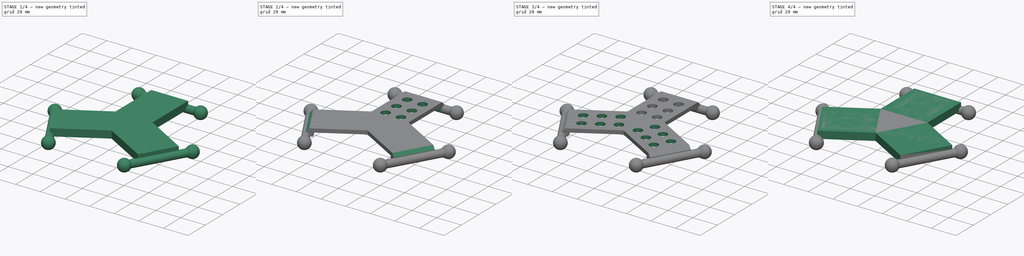
[diagram: build sequence overview — one tinted view per stage of 4, left to right]
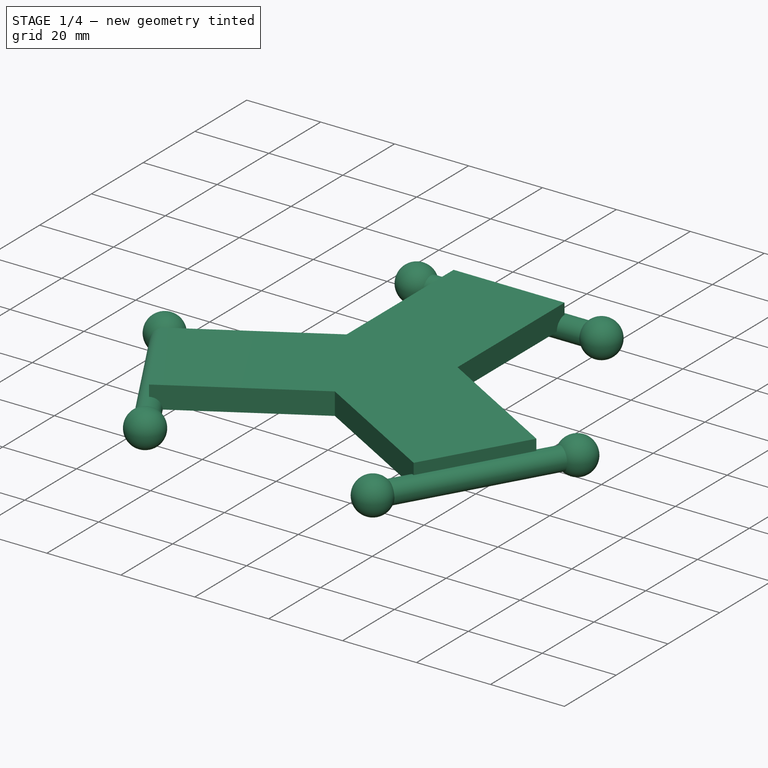
[diagram: stage 1 of 4 — iso view after this stage's code; geometry added in this stage tinted green]
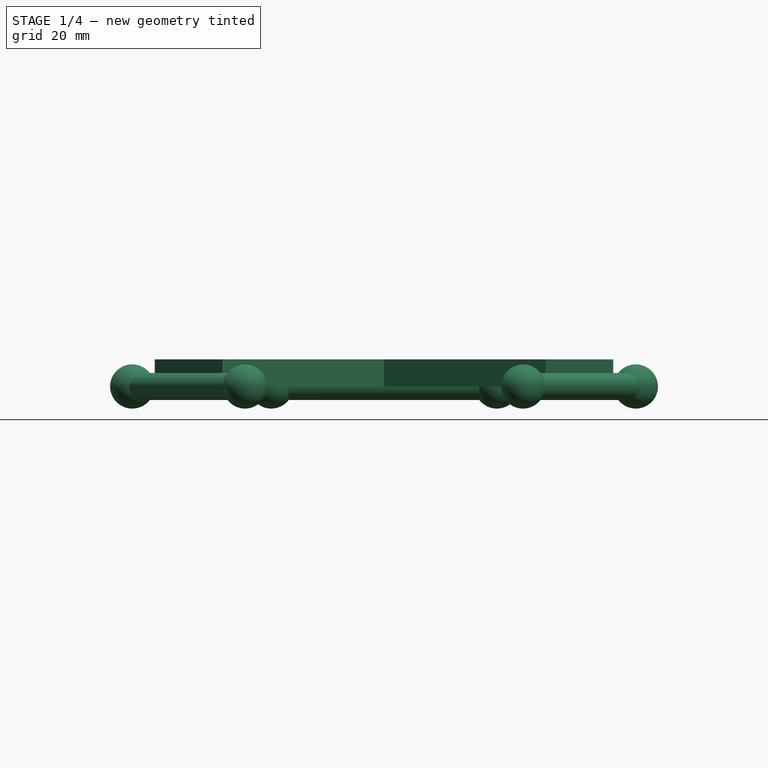
[diagram: stage 1 of 4 — front view after this stage's code; geometry added in this stage tinted green]
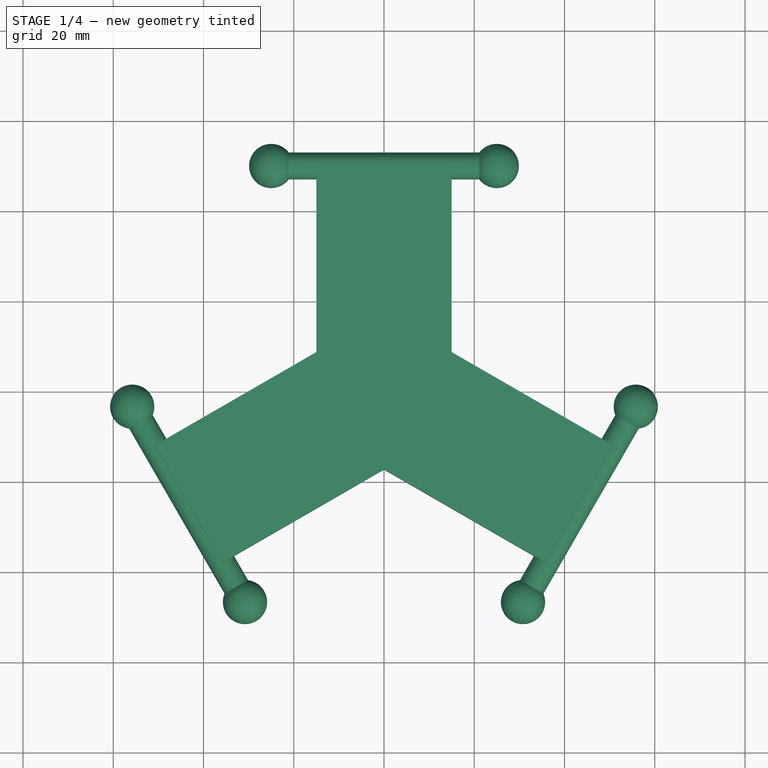
[diagram: stage 1 of 4 — top view after this stage's code; geometry added in this stage tinted green]
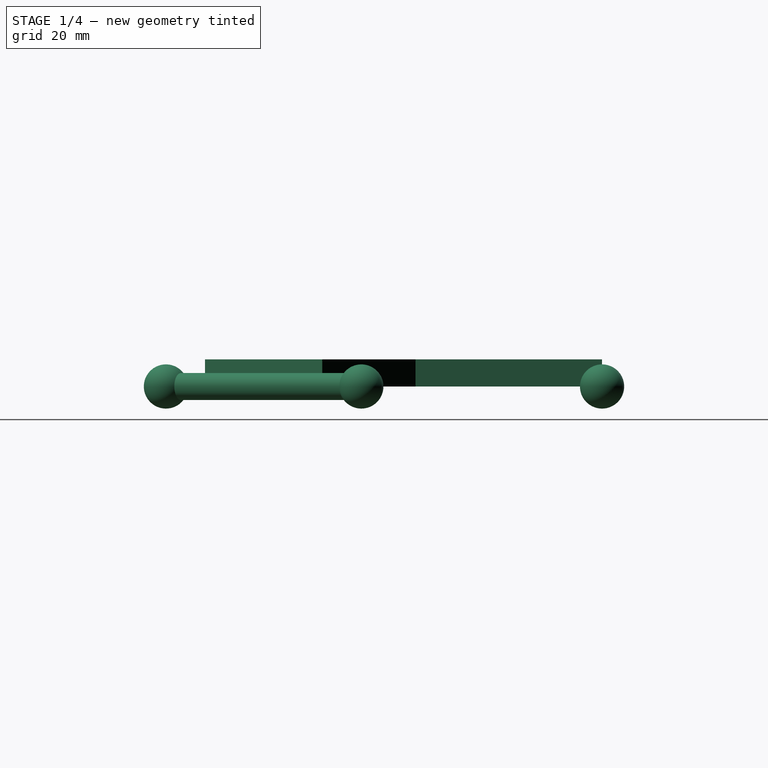
[diagram: stage 1 of 4 — right view after this stage's code; geometry added in this stage tinted green]
FCSTD DOCUMENT  (FreeCAD 2024.1R35694 (Git))
Label: plate
License: All rights reserved
LicenseURL: http://en.wikipedia.org/wiki/All_rights_reserved
objects: Sketcher::SketchObject×6, PartDesign::PolarPattern×3, PartDesign::Pad×2, PartDesign::Revolution×2, PartDesign::Body×2, PartDesign::Chamfer×2, PartDesign::Pocket×2, App::Part×1
note: 27 computed .brp shape members not serialized (recipe doc carries the construction recipe); baked Part::Feature solids carry a one-line shape summary decoded from their .brp

FEATURE [PartDesign::Body] Body001  label="plate-skel"
  Group = -> [Sketch003,Pad001,Sketch,Revolution,PolarPattern]
  Origin = -> Origin002
  Tip = -> PolarPattern
FEATURE [Sketcher::SketchObject] Sketch005
  FullyConstrained = true
  MapMode = 5
  Support = -> [XY_Plane003]
  sketch-geometry (4):
    g0: LineSegment StartX=15 StartY=0 StartZ=0 EndX=15 EndY=50 EndZ=0
    g1: LineSegment StartX=15 StartY=50 StartZ=0 EndX=-15 EndY=50 EndZ=0
    g2: LineSegment StartX=-15 StartY=50 StartZ=0 EndX=-15 EndY=0 EndZ=0
    g3: LineSegment StartX=-15 StartY=0 StartZ=0 EndX=15 EndY=0 EndZ=0
  constraints (11):
    c: Coincident(g0,g1)
    c: Coincident(g1,g2)
    c: Coincident(g2,g3)
    c: Coincident(g3,g0)
    c: Vertical(g0)
    c: Vertical(g2)
    c: Horizontal(g1)
    c: PointOnObject(g0,g-1)
    c: Symmetric(g2,g0,g-2)
    c: DistanceX(g3,g3) = 30
    c: DistanceY(g0,g0) = 50
FEATURE [PartDesign::Pad] Pad002
  Direction = (0,0,1)
  Length = 6
  Length2 = 10
  Profile = -> Sketch005
  ReferenceAxis = -> Sketch005 [N_Axis]
  Type = 0
FEATURE [Sketcher::SketchObject] Sketch004
  ExternalGeometry = -> [Pad002]
  FullyConstrained = true
  MapMode = 5
  Support = -> [XY_Plane003]
  sketch-geometry (4):
    g0: LineSegment StartX=-29.9 StartY=50 StartZ=0 EndX=29.9 EndY=50 EndZ=0
    g1: ArcOfCircle CenterX=-25 CenterY=50 CenterZ=0 NormalX=0 NormalY=0 NormalZ=1 AngleXU=0 Radius=4.9 StartAngle=0.658897 EndAngle=3.14159
    g2: ArcOfCircle CenterX=25 CenterY=50 CenterZ=0 NormalX=0 NormalY=0 NormalZ=1 AngleXU=0 Radius=4.9 StartAngle=4e-16 EndAngle=2.4827
    g3: LineSegment StartX=-21.1257 StartY=53 StartZ=0 EndX=21.1257 EndY=53 EndZ=0
  constraints (12):
    c: Symmetric(g0,g0,g-2)
    c: PointOnObject(g-3,g0)
    c: PointOnObject(g1,g0)
    c: Coincident(g1,g0)
    c: Coincident(g2,g0)
    c: Symmetric(g1,g2,g-2)
    c: DistanceX(g1,g2) = 50
    c: Radius(g1) = 4.9
    c: Coincident(g3,g1)
    c: Coincident(g3,g2)
    c: Horizontal(g3)
    c: DistanceY(g-3,g1) = 3
FEATURE [PartDesign::Revolution] Revolution001
  Angle = 360
  Angle2 = 60
  Axis = (1,0,0)
  Base = (-29.9,50,0)
  BaseFeature = -> Pad002
  Profile = -> Sketch004
  ReferenceAxis = -> Sketch004 [Edge1]
  Refine = true
  Type = 0
FEATURE [PartDesign::PolarPattern] PolarPattern001
  Angle = 360
  Axis = -> Sketch005 [N_Axis]
  BaseFeature = -> Revolution001
  Mode = 0
  Occurrences = 3
  Offset = 120
  Originals = -> [Pad002,Revolution001]
  Refine = true
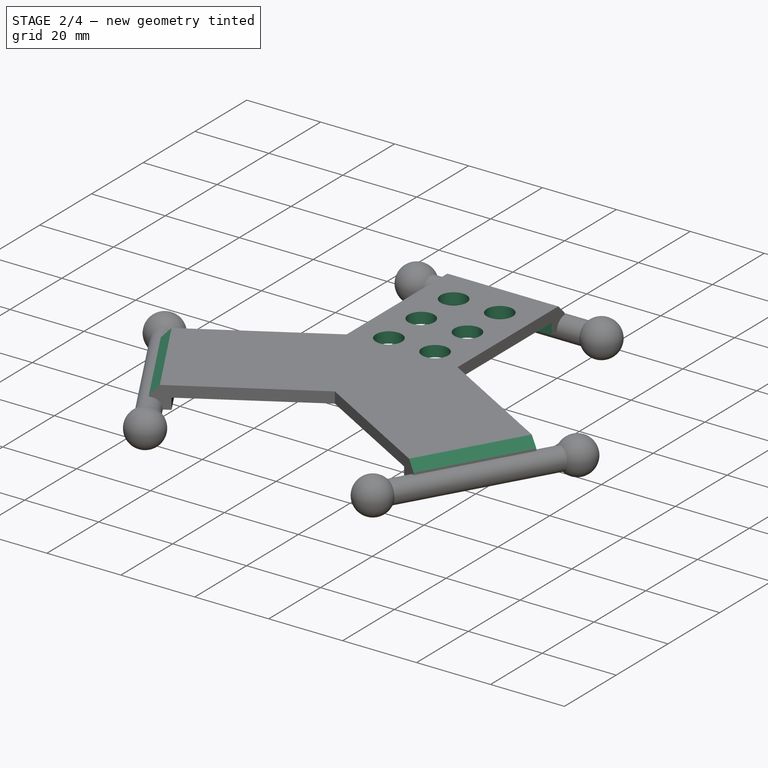
[diagram: stage 2 of 4 — iso view after this stage's code; geometry added in this stage tinted green]
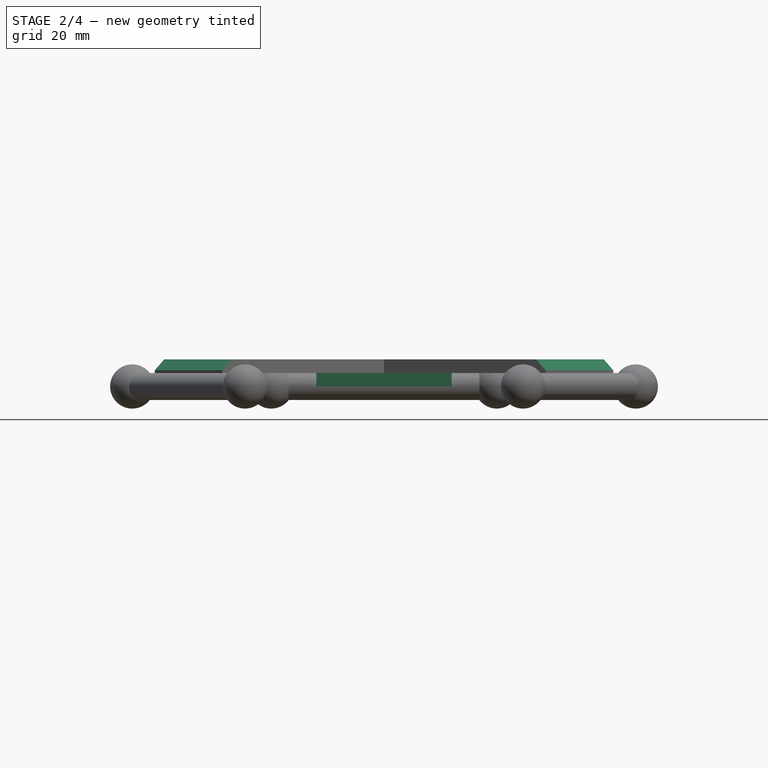
[diagram: stage 2 of 4 — front view after this stage's code; geometry added in this stage tinted green]
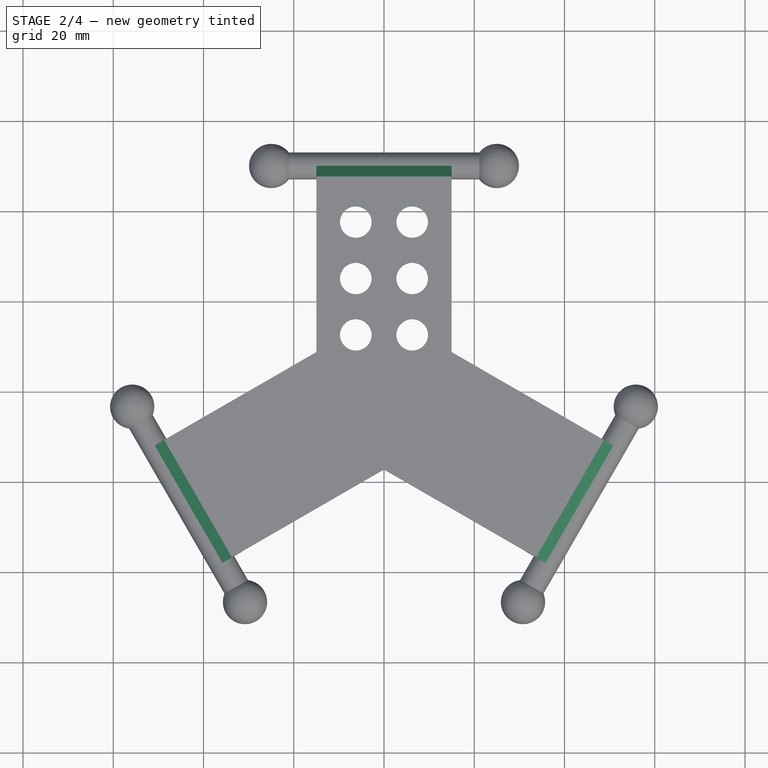
[diagram: stage 2 of 4 — top view after this stage's code; geometry added in this stage tinted green]
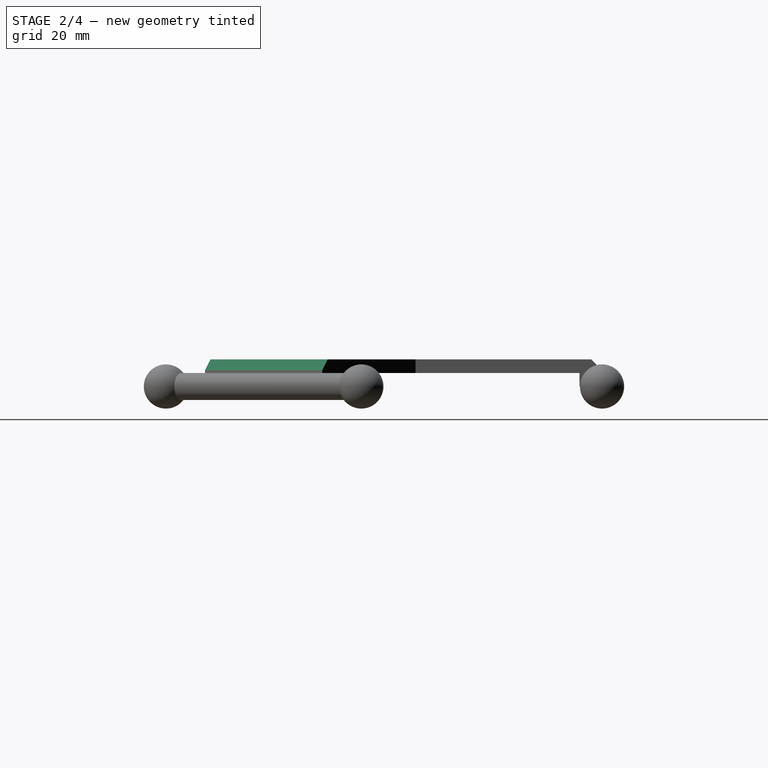
[diagram: stage 2 of 4 — right view after this stage's code; geometry added in this stage tinted green]
FEATURE [PartDesign::Chamfer] Chamfer
  Angle = 45
  Base = -> PolarPattern001 [Edge17,Edge44,Edge35]
  BaseFeature = -> PolarPattern001
  ChamferType = 0
  FlipDirection = false
  Refine = true
  Size = 2.4
  Size2 = 1
  SupportTransform = false
  UseAllEdges = false
FEATURE [Sketcher::SketchObject] Sketch006
  FullyConstrained = true
  MapMode = 5
  Placement = pos=(0,0,0) rot=(1,0,0;3.14159rad)
  Support = -> [Chamfer]
  sketch-geometry (7):
    g0: LineSegment StartX=25.9808 StartY=45 StartZ=0 EndX=-25.9808 EndY=45 EndZ=0
    g1: LineSegment StartX=-25.9808 StartY=45 StartZ=0 EndX=-51.9615 EndY=0 EndZ=0
    g2: LineSegment StartX=-51.9615 StartY=0 StartZ=0 EndX=-25.9808 EndY=-45 EndZ=0
    g3: LineSegment StartX=-25.9808 StartY=-45 StartZ=0 EndX=25.9808 EndY=-45 EndZ=0
    g4: LineSegment StartX=25.9808 StartY=-45 StartZ=0 EndX=51.9615 EndY=0 EndZ=0
    g5: LineSegment StartX=51.9615 StartY=0 StartZ=0 EndX=25.9808 EndY=45 EndZ=0
    g6: Circle CenterX=0 CenterY=0 CenterZ=0 NormalX=0 NormalY=0 NormalZ=1 AngleXU=0 Radius=51.9615
  constraints (16):
    c: Coincident(g0,g1)
    c: Coincident(g1,g2)
    c: Coincident(g2,g3)
    c: Coincident(g3,g4)
    c: Coincident(g4,g5)
    c: Coincident(g5,g0)
    c: Equal(g0, g1-g5) x5
    c: PointOnObject(g0,g6)
    c: PointOnObject(g1,g6)
    c: PointOnObject(g2,g6)
    c: PointOnObject(g3,g6)
    c: PointOnObject(g4,g6)
    c: PointOnObject(g5,g6)
    c: Coincident(g6,g-1)
    c: Horizontal(g0)
    c: DistanceY(g3,g0) = 90
FEATURE [PartDesign::Pocket] Pocket
  BaseFeature = -> Chamfer
  Direction = (0,0,1)
  Length = 3
  Length2 = 5
  Profile = -> Sketch006
  ReferenceAxis = -> Sketch006 [N_Axis]
  Refine = true
  Type = 0
FEATURE [Sketcher::SketchObject] Sketch007
  FullyConstrained = true
  MapMode = 5
  Placement = pos=(0,0,3) rot=(1,0,0;3.14159rad)
  Support = -> [Pocket]
  sketch-geometry (6):
    g0: Circle CenterX=-6.25 CenterY=-37.5 CenterZ=0 NormalX=0 NormalY=0 NormalZ=1 AngleXU=0 Radius=3.5
    g1: Circle CenterX=6.25 CenterY=-37.5 CenterZ=0 NormalX=0 NormalY=0 NormalZ=1 AngleXU=0 Radius=3.5
    g2: Circle CenterX=-6.25 CenterY=-25 CenterZ=0 NormalX=0 NormalY=0 NormalZ=1 AngleXU=0 Radius=3.5
    g3: Circle CenterX=6.25 CenterY=-25 CenterZ=0 NormalX=0 NormalY=0 NormalZ=1 AngleXU=0 Radius=3.5
    g4: Circle CenterX=6.25 CenterY=-12.5 CenterZ=0 NormalX=0 NormalY=0 NormalZ=1 AngleXU=0 Radius=3.5
    g5: Circle CenterX=-6.25 CenterY=-12.5 CenterZ=0 NormalX=0 NormalY=0 NormalZ=1 AngleXU=0 Radius=3.5
  constraints (15):
    c: Symmetric(g0,g1,g-2)
    c: Symmetric(g2,g3,g-2)
    c: DistanceX(g2,g3) = 12.5
    c: DistanceY(g1,g3) = 12.5
    c: Diameter(g3) = 7
    c: Equal(g2,g3)
    c: Equal(g0,g1)
    c: DistanceY(g3,g-1) = 25
    c: Vertical(g3,g1)
    c: Equal(g0,g2)
    c: Symmetric(g5,g4,g-2)
    c: Vertical(g2,g5)
    c: DistanceY(g3,g4) = 12.5
    c: Equal(g5,g2)
    c: Equal(g4,g5)
FEATURE [PartDesign::Pocket] Pocket001
  BaseFeature = -> Pocket
  Direction = (0,0,1)
  Length = 5
  Length2 = 5
  Profile = -> Sketch007
  ReferenceAxis = -> Sketch007 [N_Axis]
  Refine = true
  Type = 1
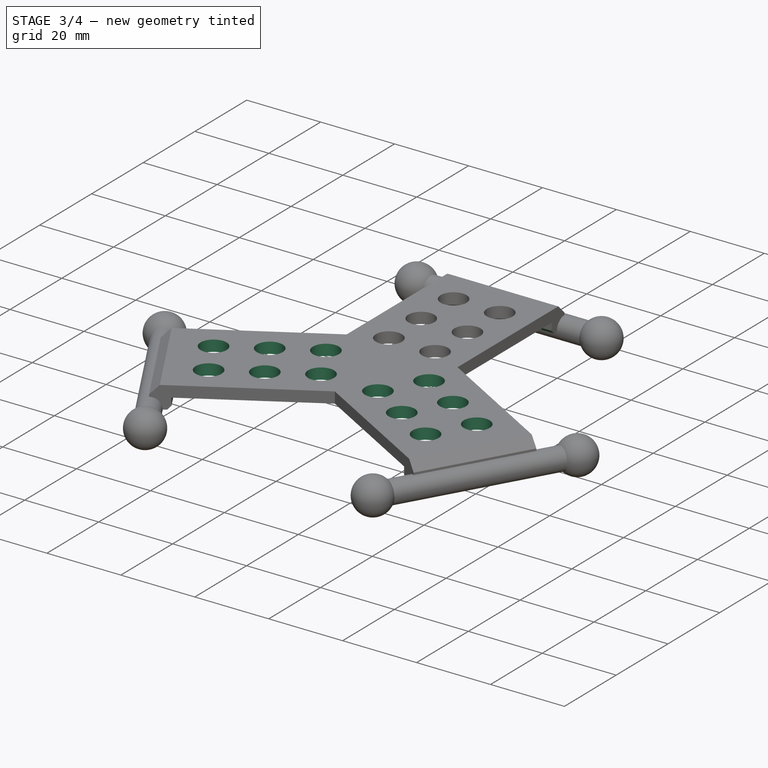
[diagram: stage 3 of 4 — iso view after this stage's code; geometry added in this stage tinted green]
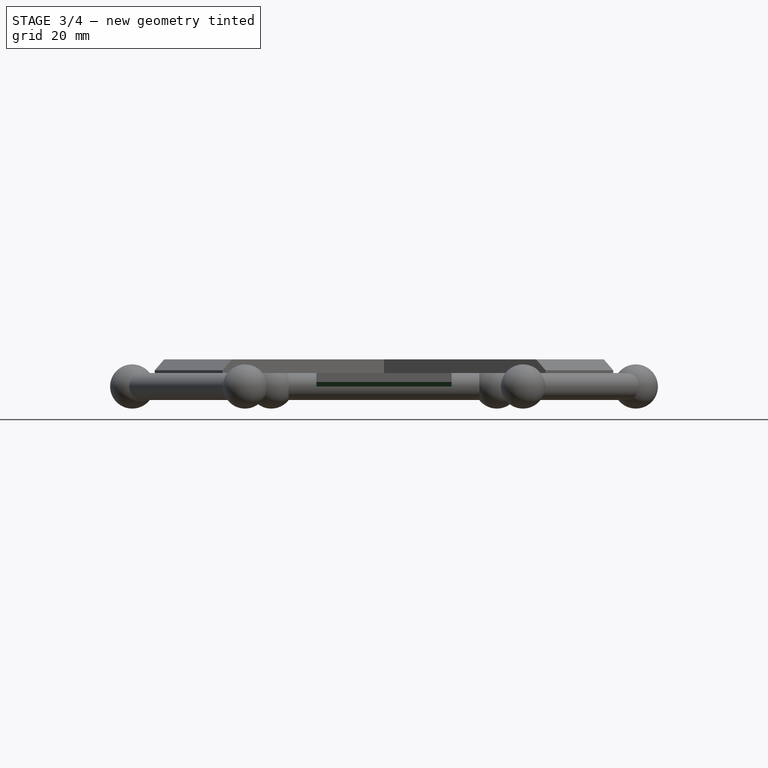
[diagram: stage 3 of 4 — front view after this stage's code; geometry added in this stage tinted green]
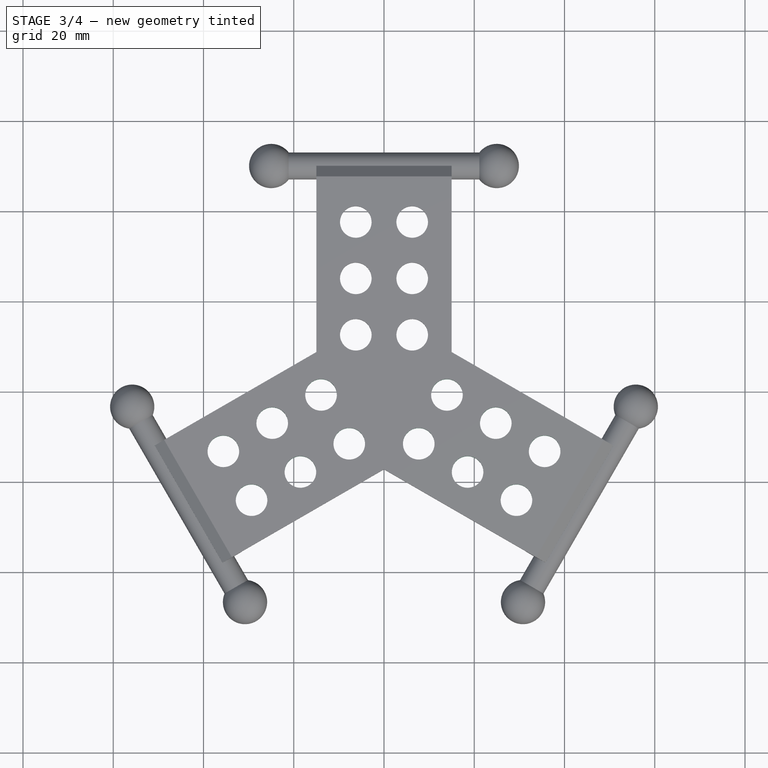
[diagram: stage 3 of 4 — top view after this stage's code; geometry added in this stage tinted green]
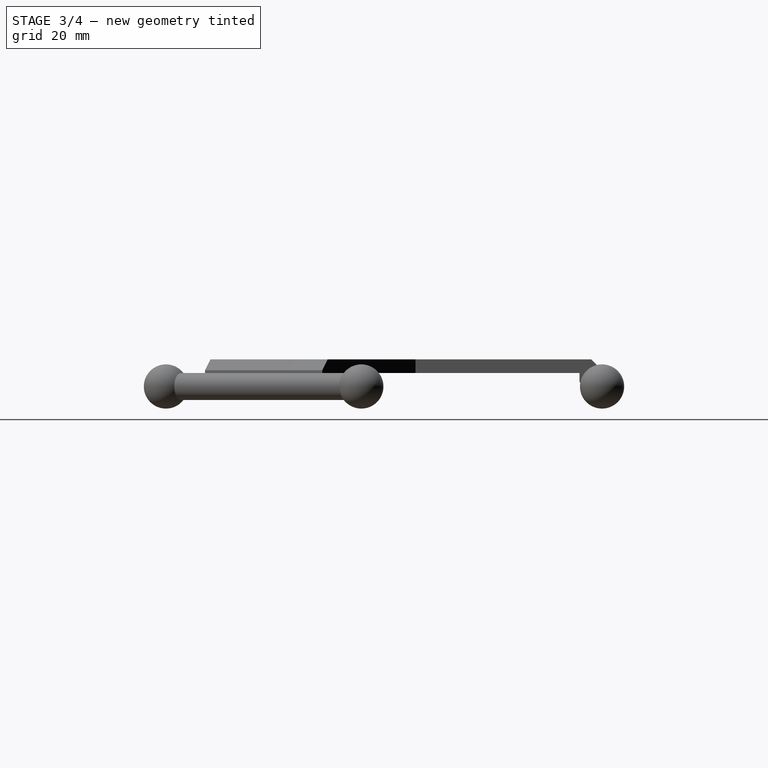
[diagram: stage 3 of 4 — right view after this stage's code; geometry added in this stage tinted green]
FEATURE [PartDesign::PolarPattern] PolarPattern002
  Angle = 360
  Axis = -> Z_Axis003
  BaseFeature = -> Pocket001
  Mode = 0
  Occurrences = 3
  Offset = 120
  Originals = -> [Pocket001]
  Refine = true
FEATURE [PartDesign::Chamfer] Chamfer001
  Angle = 45
  Base = -> PolarPattern002 [Edge68,Edge120,Edge121]
  BaseFeature = -> PolarPattern002
  ChamferType = 0
  FlipDirection = false
  Refine = true
  Size = 1
  Size2 = 1
  SupportTransform = false
  UseAllEdges = false
FEATURE [PartDesign::Body] Body002  label="plate-0"
  Group = -> [Sketch005,Pad002,Sketch004,Revolution001,PolarPattern001,Chamfer,Sketch006,Pocket,Sketch007,Pocket001,PolarPattern002,Chamfer001]
  Origin = -> Origin003
  Tip = -> Chamfer001
FEATURE [App::Part] Part  label="plate"
  Group = -> [Body001,Body002]
  Origin = -> Origin001
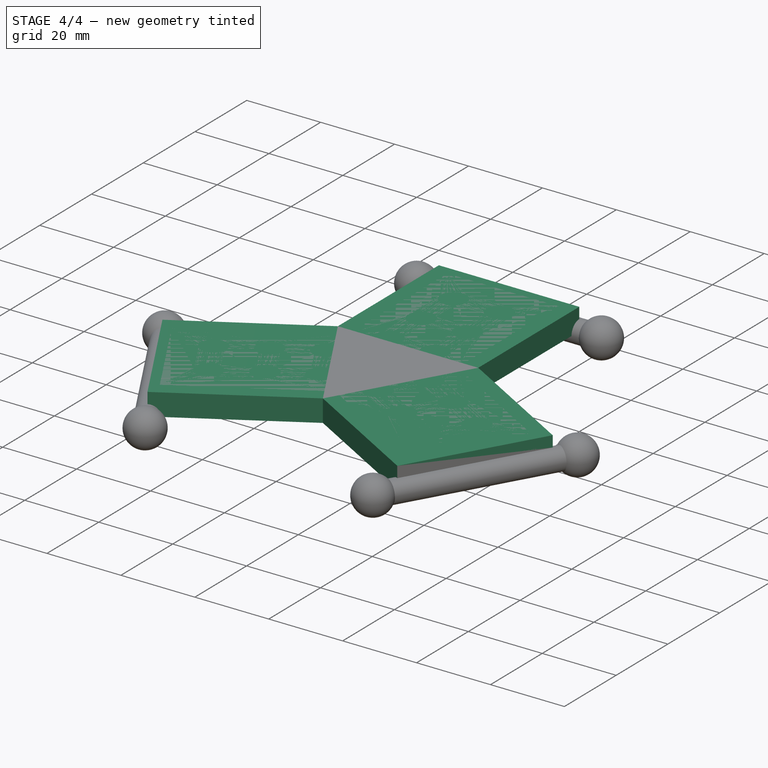
[diagram: stage 4 of 4 — iso view after this stage's code; geometry added in this stage tinted green]
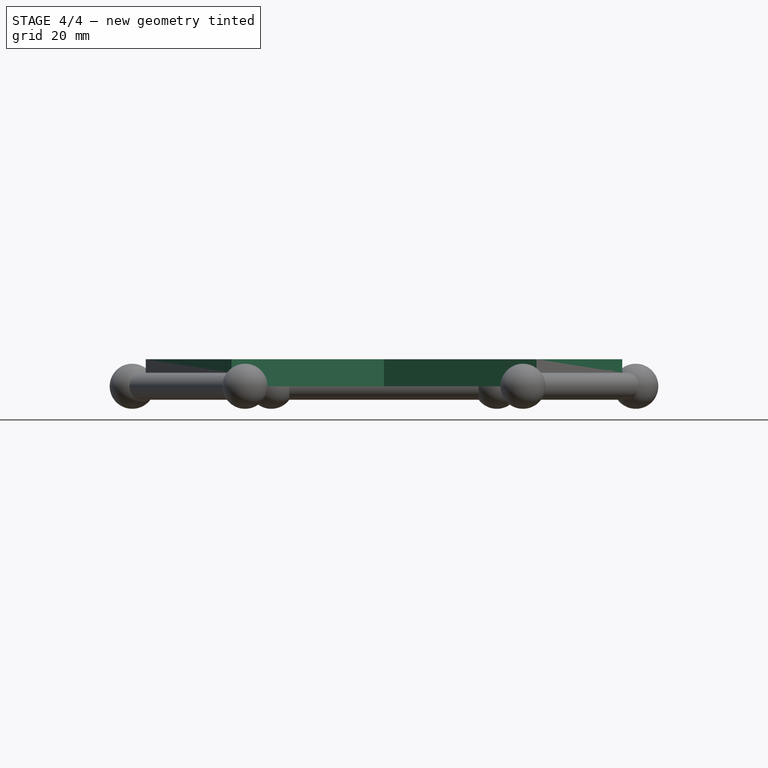
[diagram: stage 4 of 4 — front view after this stage's code; geometry added in this stage tinted green]
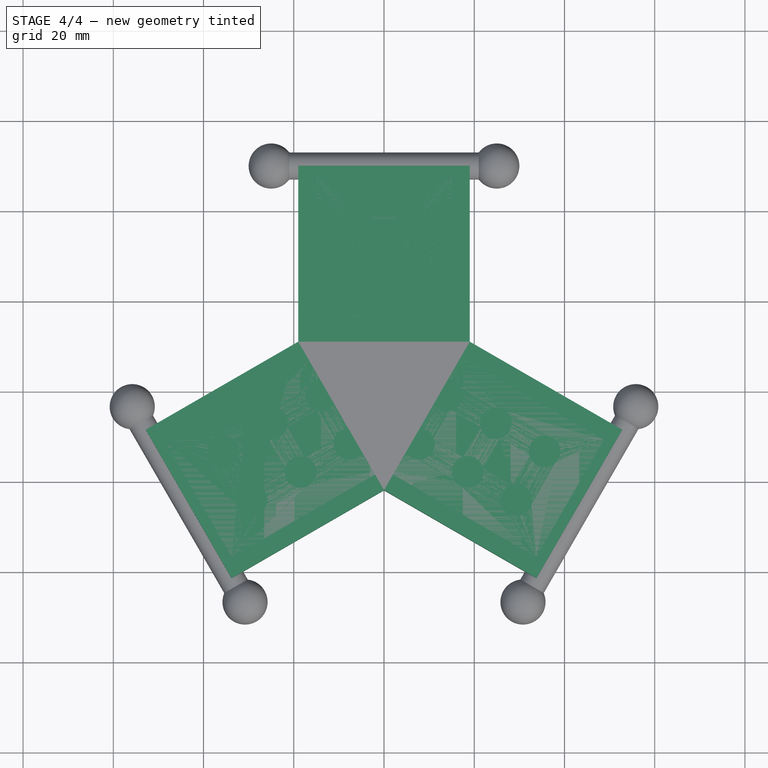
[diagram: stage 4 of 4 — top view after this stage's code; geometry added in this stage tinted green]
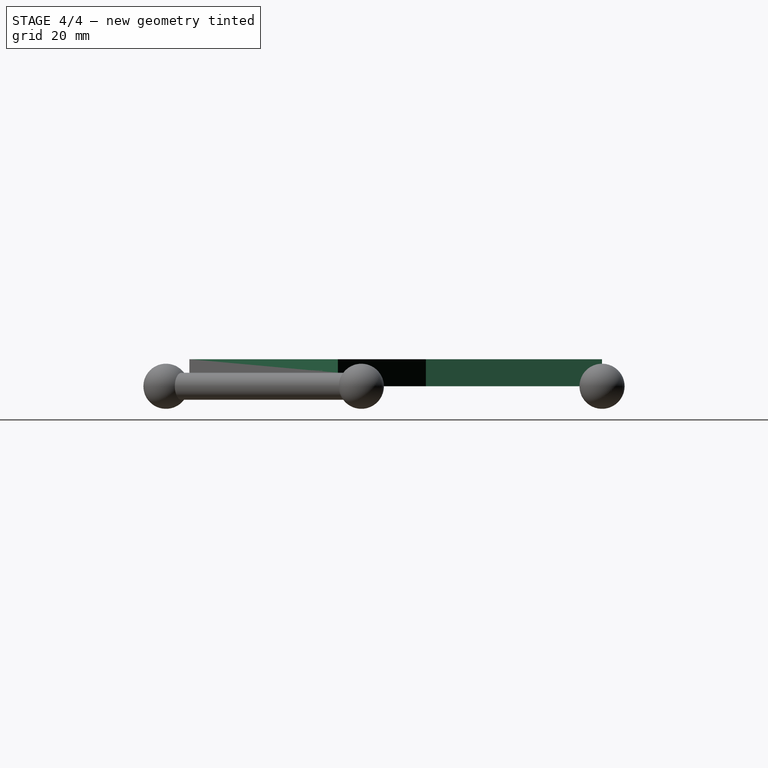
[diagram: stage 4 of 4 — right view after this stage's code; geometry added in this stage tinted green]
FEATURE [Sketcher::SketchObject] Sketch003
  FullyConstrained = true
  MapMode = 5
  Support = -> [XY_Plane002]
  sketch-geometry (4):
    g0: LineSegment StartX=19 StartY=0 StartZ=0 EndX=19 EndY=50 EndZ=0
    g1: LineSegment StartX=19 StartY=50 StartZ=0 EndX=-19 EndY=50 EndZ=0
    g2: LineSegment StartX=-19 StartY=50 StartZ=0 EndX=-19 EndY=0 EndZ=0
    g3: LineSegment StartX=-19 StartY=0 StartZ=0 EndX=19 EndY=0 EndZ=0
  constraints (11):
    c: Coincident(g0,g1)
    c: Coincident(g1,g2)
    c: Coincident(g2,g3)
    c: Coincident(g3,g0)
    c: Vertical(g0)
    c: Vertical(g2)
    c: Horizontal(g1)
    c: PointOnObject(g0,g-1)
    c: Symmetric(g2,g0,g-2)
    c: DistanceX(g3,g3) = 38
    c: DistanceY(g0,g0) = 50
FEATURE [PartDesign::Pad] Pad001
  Direction = (0,0,1)
  Length = 6
  Length2 = 10
  Profile = -> Sketch003
  ReferenceAxis = -> Sketch003 [N_Axis]
  Type = 0
FEATURE [Sketcher::SketchObject] Sketch
  ExternalGeometry = -> [Pad001]
  FullyConstrained = true
  MapMode = 5
  Support = -> [XY_Plane002]
  sketch-geometry (4):
    g0: LineSegment StartX=-30 StartY=50 StartZ=0 EndX=30 EndY=50 EndZ=0
    g1: ArcOfCircle CenterX=-25 CenterY=50 CenterZ=0 NormalX=0 NormalY=0 NormalZ=1 AngleXU=0 Radius=5 StartAngle=0.643501 EndAngle=3.14159
    g2: ArcOfCircle CenterX=25 CenterY=50 CenterZ=0 NormalX=0 NormalY=0 NormalZ=1 AngleXU=0 Radius=5 StartAngle=-9e-16 EndAngle=2.49809
    g3: LineSegment StartX=-21 StartY=53 StartZ=0 EndX=21 EndY=53 EndZ=0
  constraints (12):
    c: Symmetric(g0,g0,g-2)
    c: PointOnObject(g-3,g0)
    c: PointOnObject(g1,g0)
    c: Coincident(g1,g0)
    c: Coincident(g2,g0)
    c: Symmetric(g1,g2,g-2)
    c: DistanceX(g1,g2) = 50
    c: Radius(g1) = 5
    c: Coincident(g3,g1)
    c: Coincident(g3,g2)
    c: Horizontal(g3)
    c: DistanceY(g-3,g1) = 3
FEATURE [PartDesign::Revolution] Revolution
  Angle = 360
  Angle2 = 60
  Axis = (1,-1e-16,0)
  Base = (-30,50,0)
  BaseFeature = -> Pad001
  Profile = -> Sketch
  ReferenceAxis = -> Sketch [Edge1]
  Refine = true
  Type = 0
FEATURE [PartDesign::PolarPattern] PolarPattern
  Angle = 360
  Axis = -> Sketch003 [N_Axis]
  BaseFeature = -> Revolution
  Mode = 0
  Occurrences = 3
  Offset = 120
  Originals = -> [Pad001,Revolution]
  Refine = true
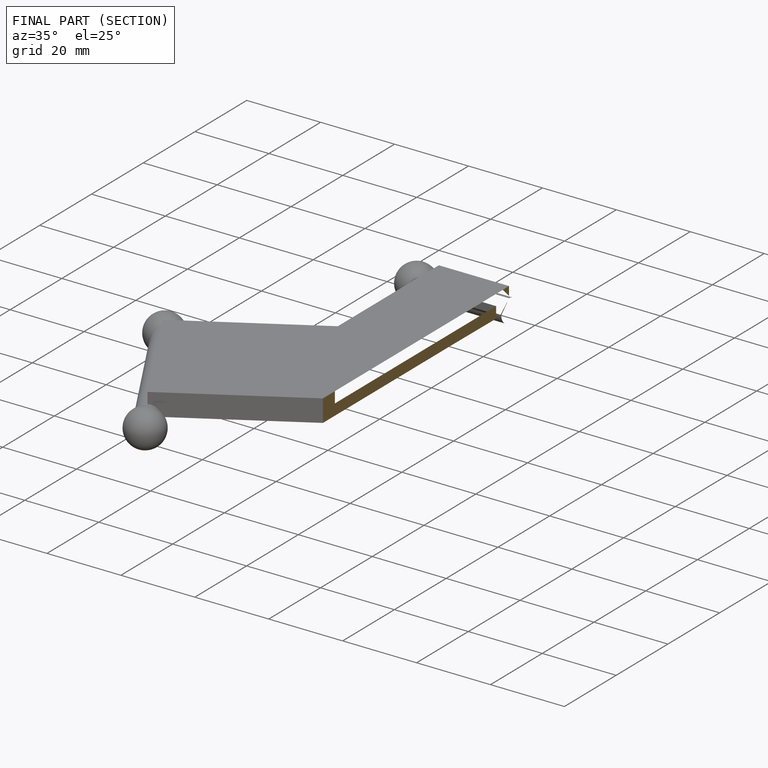
[diagram: finished part — half-section view (interior)]
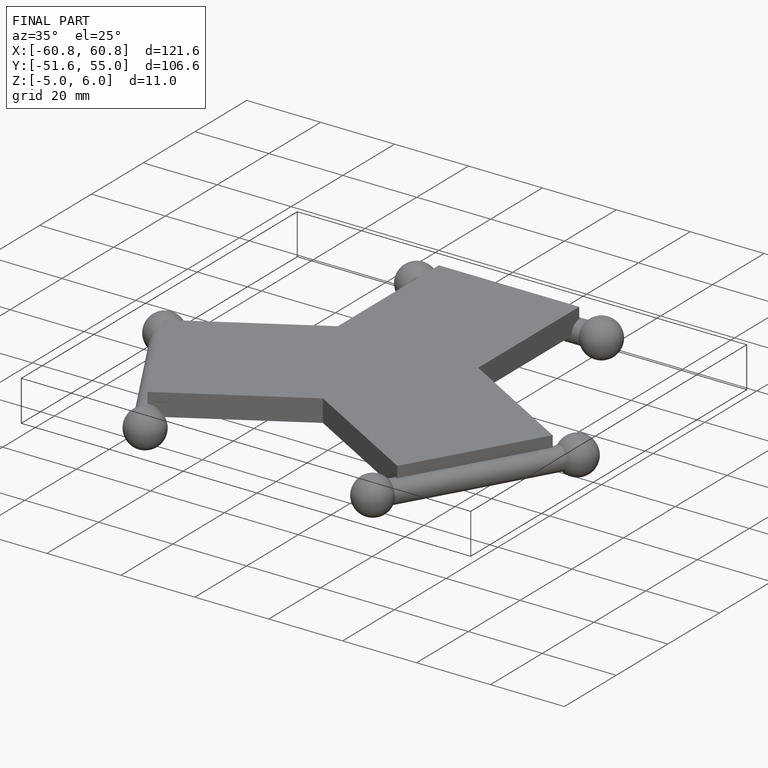
[diagram: finished part — iso view with bounding-box wireframe]
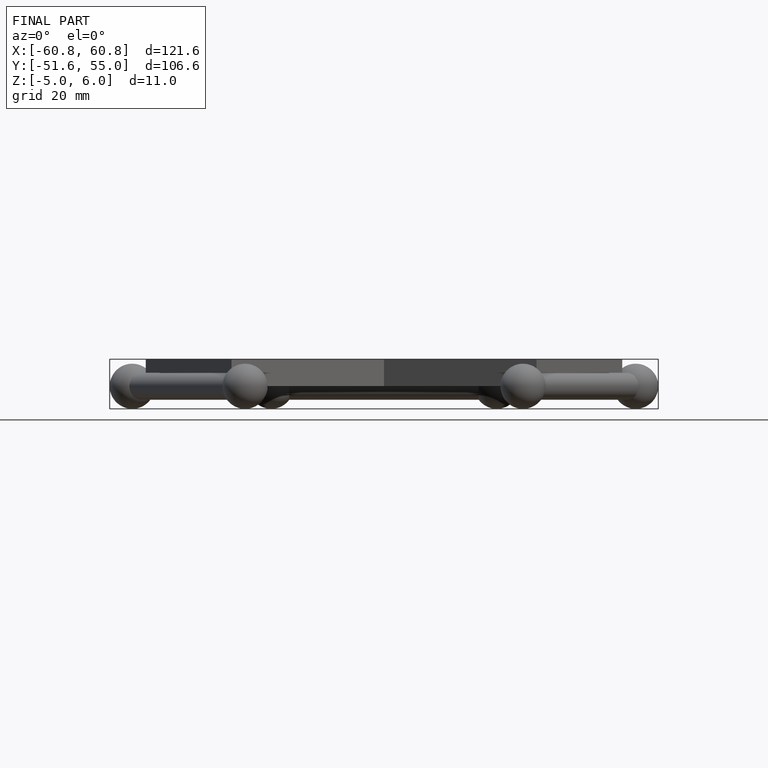
[diagram: finished part — front view with bounding-box wireframe]
